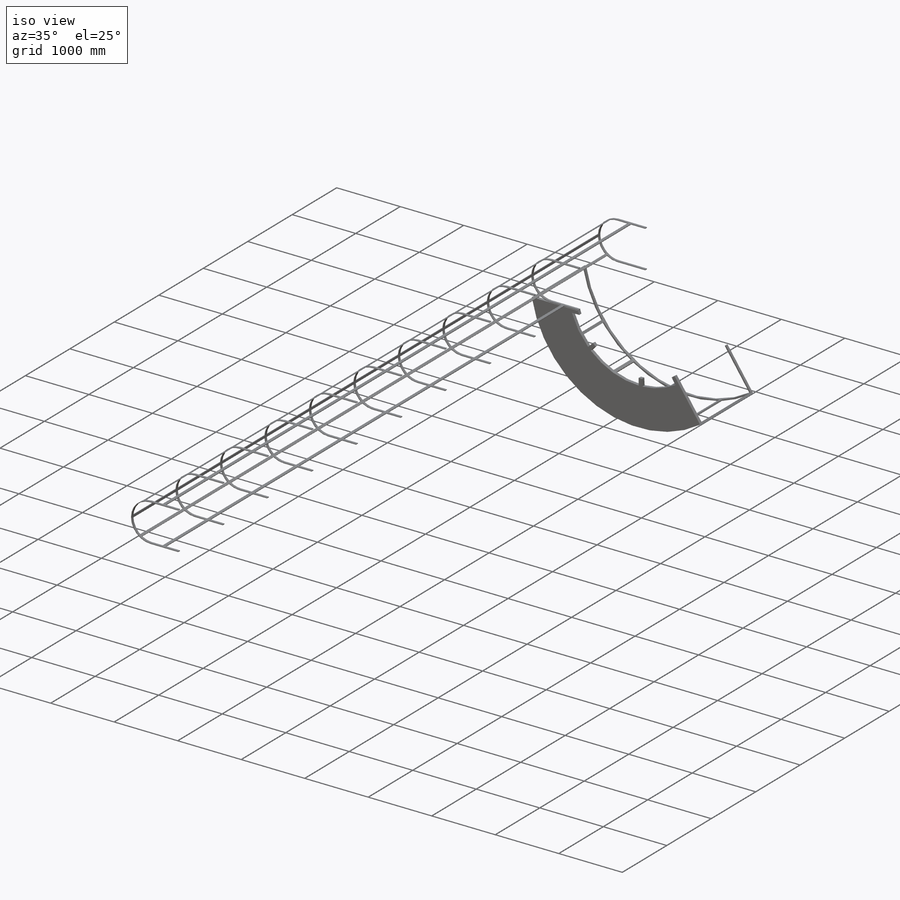
[diagram: iso view]
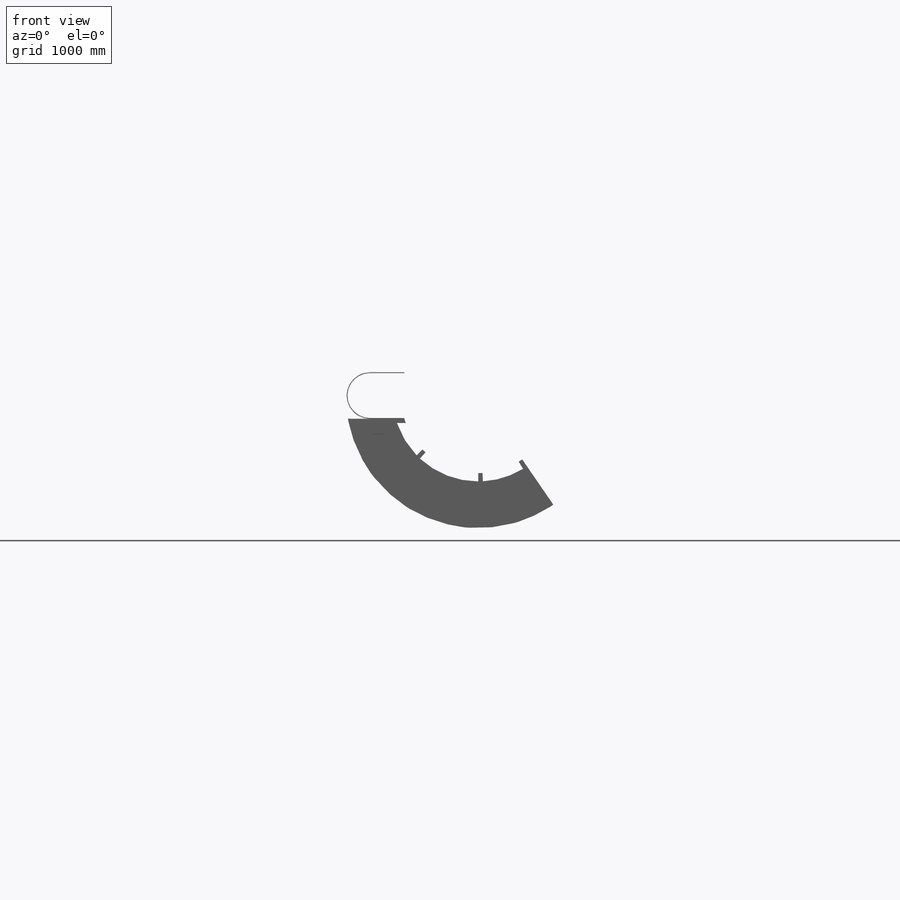
[diagram: front view]
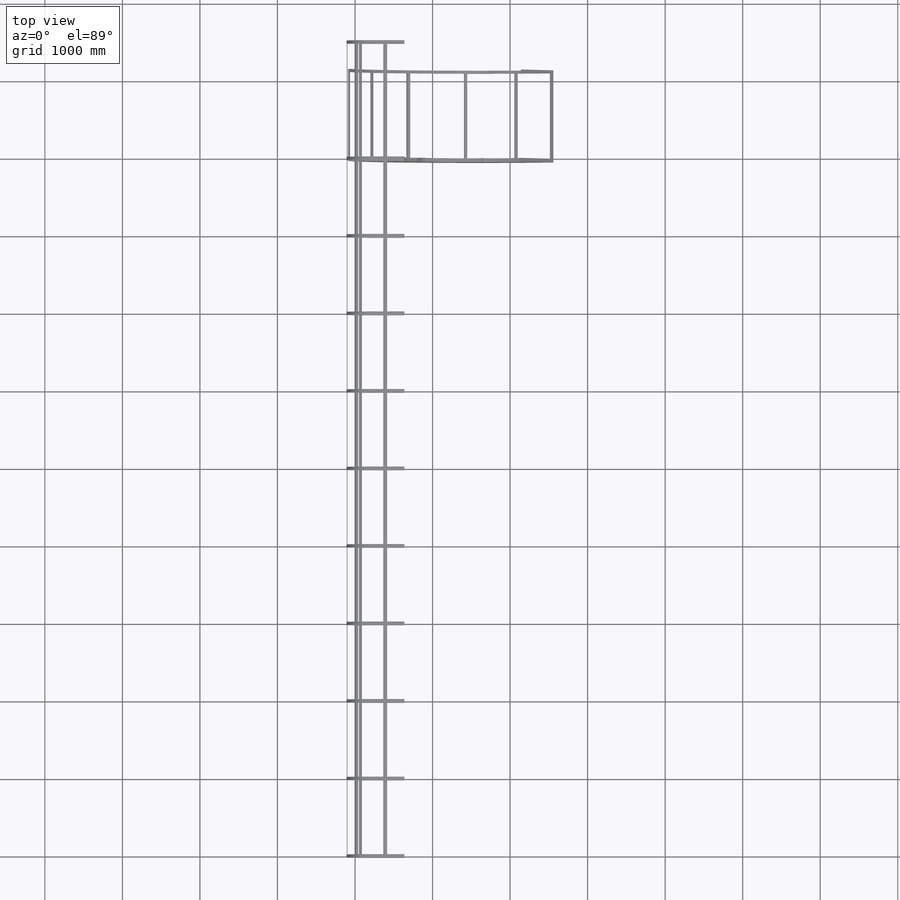
[diagram: top view]
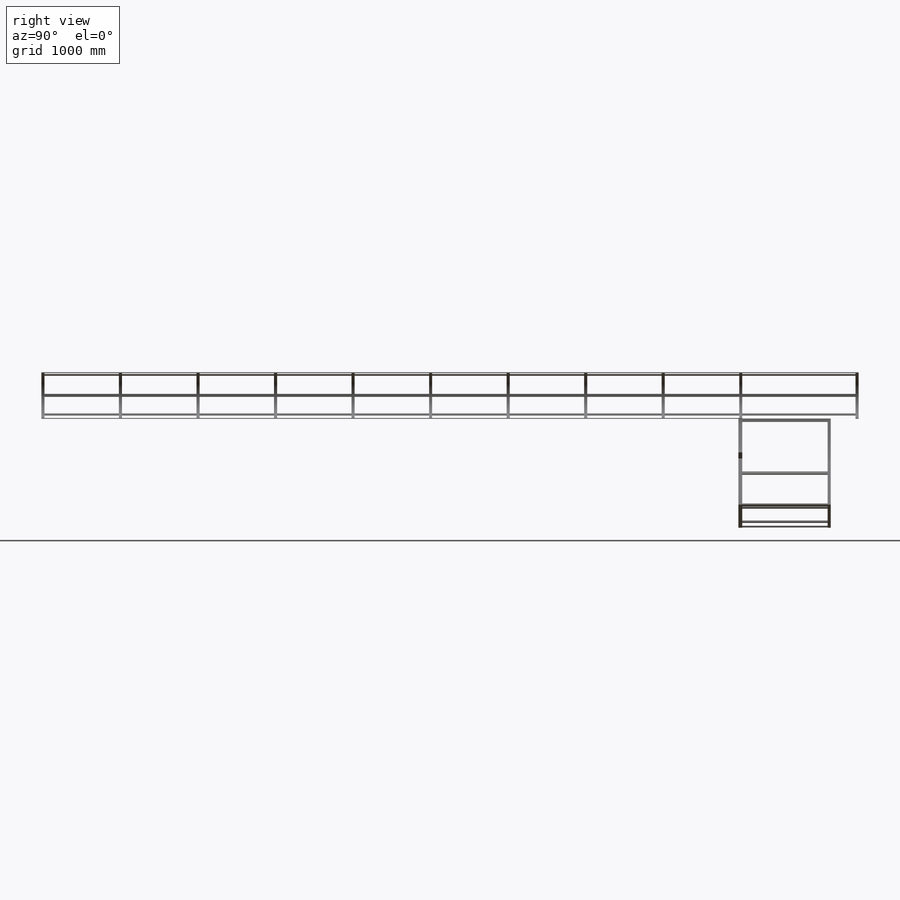
[diagram: right view]
SOLIDWORKS PART (.sldprt)
format: sldprt  version: not decoded by parser v0  size: 1,259,008 bytes
history: native  units: mm
features: sketch x6, extrude x5, pattern_linear x3, material x1, cut_extrude x1 (+16 scaffold rows collapsed)
feature tree (32):
  scaffold x16  (default folders/planes/origin — collapsed)
  material  "Material <not specified>"
  sketch  "Sketch2"  dims[D1=0.0mm]
  extrude  "Extrude1"  Depth=50mm
  sketch  "Sketch3"  dims[D1=600.0mm D2=10.0mm]
  extrude  "Extrude2"  Depth=40mm
  sketch  "Sketch4"
  extrude  "Extrude3"  Depth=8000mm
  pattern_linear  "LPattern1"  Count1=9 Count2=1 Spacing1=1000mm Spacing2=10mm
  pattern_linear  "LPattern2"  Count1=2 Count2=1 Spacing1=1500mm Spacing2=10mm
  sketch  "Sketch5"
  cut_extrude  "Cut-Extrude1"  [1 undecoded]
  sketch  "Sketch6"  dims[D1=40.0mm D2=20.0mm D3=40.0mm D4=20.0mm D5=40.0mm D6=20.0mm D7=40.0mm D8=20.0mm D9=40.0mm D10=20.0mm D11=20.0mm D12=40.0mm]
  extrude  "Extrude4"  Depth=1100mm
  sketch  "Sketch7"  dims[D1=20.0mm]
  extrude  "Extrude5"  Depth=40mm
  pattern_linear  "LPattern3"  Count1=2 Count2=1 Spacing1=9000mm Spacing2=10mm
decode coverage: 12 of 15 modeling features carry decoded parameters
note: 1 parameter value undecoded
note: suppression state not decoded; provenance and decode notes live in map.json
